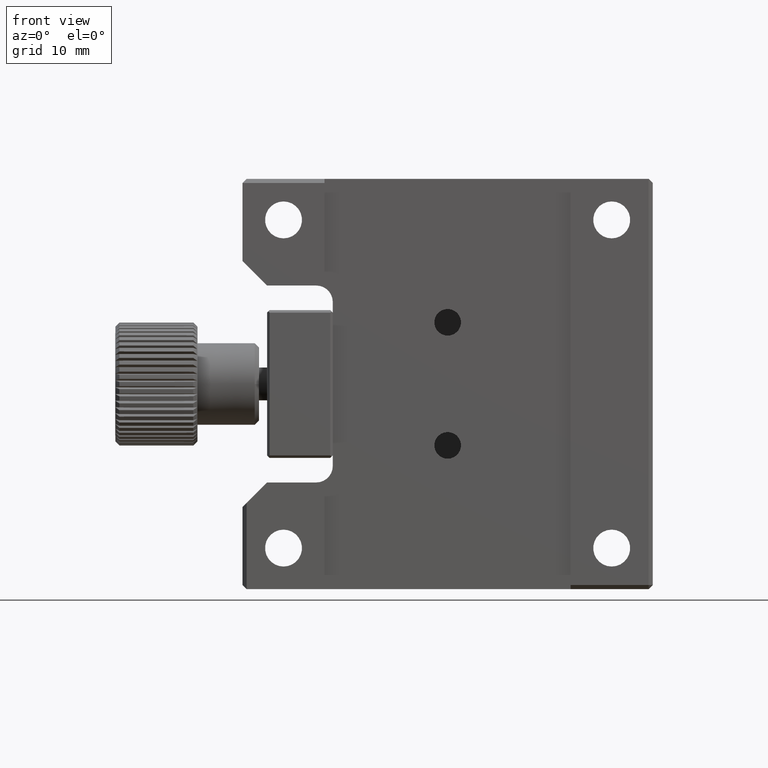
[diagram: clean part render]
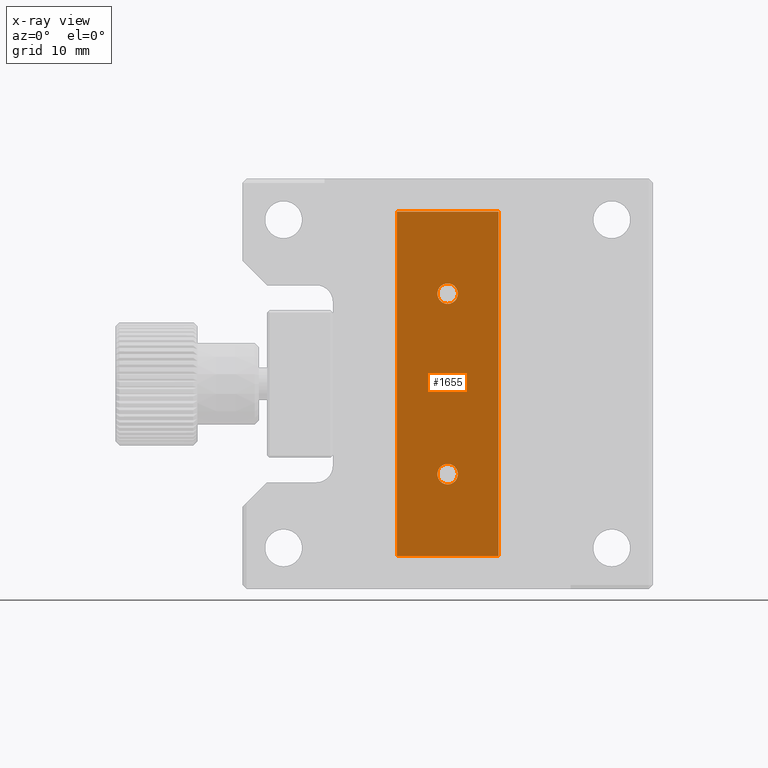
[diagram: x-ray — body ghosted, one internal face saturated and labeled with its STEP entity id]
A machine part, front view, then the same camera in x-ray: the body is ghosted and one INTERNAL B-rep face — a face not visible from any outside direction — is saturated and labeled: STEP entity #1655.
In plain terms, the highlighted planar face has unit normal (0, 1, 0).
Its self-contained STEP definition (entity closure, byte-faithful):
#153 = CARTESIAN_POINT ( 'NONE',  ( 6.199999999999990408, 18.99999999999999289, 21.00000000000000000 ) ) ;
#243 = AXIS2_PLACEMENT_3D ( 'NONE', #3459, #3710, #13551 ) ;
#318 = LINE ( 'NONE', #5308, #11089 ) ;
#435 = LINE ( 'NONE', #13077, #3577 ) ;
#485 = EDGE_CURVE ( 'NONE', #2507, #8879, #2434, .T. ) ;
#1209 = DIRECTION ( 'NONE',  ( 1.000000000000000000, 0.000000000000000000, -0.000000000000000000 ) ) ;
#1642 = VERTEX_POINT ( 'NONE', #11171 ) ;
#1655 = ADVANCED_FACE ( 'NONE', ( #3540, #14963, #8529 ), #4690, .F. ) ;
#1703 = CARTESIAN_POINT ( 'NONE',  ( 0.000000000000000000, 18.99999999993815791, -12.25000000005138645 ) ) ;
#1823 = ORIENTED_EDGE ( 'NONE', *, *, #7428, .F. ) ;
#2027 = DIRECTION ( 'NONE',  ( 0.000000000000000000, 0.000000000000000000, -1.000000000000000000 ) ) ;
#2434 = LINE ( 'NONE', #11381, #15657 ) ;
#2483 = EDGE_LOOP ( 'NONE', ( #3704, #13986, #7582, #12093 ) ) ;
#2507 = VERTEX_POINT ( 'NONE', #12923 ) ;
#2678 = DIRECTION ( 'NONE',  ( 0.000000000000000000, -1.000000000000000000, 0.000000000000000000 ) ) ;
#3264 = CARTESIAN_POINT ( 'NONE',  ( 0.000000000000000000, 18.99999999999500133, 11.00000000000000000 ) ) ;
#3459 = CARTESIAN_POINT ( 'NONE',  ( -6.199999999999990408, 19.00000000000001066, 21.00000000000000000 ) ) ;
#3540 = FACE_OUTER_BOUND ( 'NONE', #2483, .T. ) ;
#3577 = VECTOR ( 'NONE', #8041, 1000.000000000000000 ) ;
#3704 = ORIENTED_EDGE ( 'NONE', *, *, #485, .T. ) ;
#3710 = DIRECTION ( 'NONE',  ( 2.238352872228140044E-15, 1.000000000000000000, 0.000000000000000000 ) ) ;
#4183 = VECTOR ( 'NONE', #8608, 1000.000000000000000 ) ;
#4690 = PLANE ( 'NONE',  #243 ) ;
#5308 = CARTESIAN_POINT ( 'NONE',  ( 0.000000000000000000, 19.00000000000001066, -21.00000000000000000 ) ) ;
#6440 = DIRECTION ( 'NONE',  ( 0.000000000000000000, 0.000000000000000000, -1.000000000000000000 ) ) ;
#6482 = CARTESIAN_POINT ( 'NONE',  ( 0.000000000000000000, 18.99999999999500133, 9.749999999996816769 ) ) ;
#6567 = VERTEX_POINT ( 'NONE', #6482 ) ;
#7371 = LINE ( 'NONE', #7449, #4183 ) ;
#7417 = DIRECTION ( 'NONE',  ( -0.000000000000000000, -0.000000000000000000, 1.000000000000000000 ) ) ;
#7428 = EDGE_CURVE ( 'NONE', #6567, #6567, #13553, .T. ) ;
#7435 = AXIS2_PLACEMENT_3D ( 'NONE', #13928, #2678, #6440 ) ;
#7449 = CARTESIAN_POINT ( 'NONE',  ( -6.199999999999990408, 19.00000000000001066, 21.00000000000000000 ) ) ;
#7582 = ORIENTED_EDGE ( 'NONE', *, *, #12452, .F. ) ;
#8041 = DIRECTION ( 'NONE',  ( 1.000000000000000000, 0.000000000000000000, -0.000000000000000000 ) ) ;
#8247 = DIRECTION ( 'NONE',  ( 0.000000000000000000, -1.000000000000000000, 0.000000000000000000 ) ) ;
#8529 = FACE_BOUND ( 'NONE', #12934, .T. ) ;
#8608 = DIRECTION ( 'NONE',  ( 0.000000000000000000, -0.000000000000000000, 1.000000000000000000 ) ) ;
#8631 = CARTESIAN_POINT ( 'NONE',  ( -6.199999999999990408, 19.00000000000001066, 21.00000000000000000 ) ) ;
#8879 = VERTEX_POINT ( 'NONE', #153 ) ;
#9156 = EDGE_LOOP ( 'NONE', ( #1823 ) ) ;
#9980 = EDGE_CURVE ( 'NONE', #11966, #8879, #435, .T. ) ;
#10067 = VERTEX_POINT ( 'NONE', #1703 ) ;
#10119 = ORIENTED_EDGE ( 'NONE', *, *, #15632, .F. ) ;
#11089 = VECTOR ( 'NONE', #1209, 1000.000000000000000 ) ;
#11171 = CARTESIAN_POINT ( 'NONE',  ( -6.199999999999990408, 19.00000000000001066, -21.00000000000000000 ) ) ;
#11381 = CARTESIAN_POINT ( 'NONE',  ( 6.199999999999990408, 18.99999999999999289, 21.00000000000000000 ) ) ;
#11966 = VERTEX_POINT ( 'NONE', #8631 ) ;
#12093 = ORIENTED_EDGE ( 'NONE', *, *, #12997, .T. ) ;
#12452 = EDGE_CURVE ( 'NONE', #1642, #11966, #7371, .T. ) ;
#12780 = AXIS2_PLACEMENT_3D ( 'NONE', #3264, #8247, #2027 ) ;
#12923 = CARTESIAN_POINT ( 'NONE',  ( 6.199999999999990408, 18.99999999999999289, -21.00000000000000000 ) ) ;
#12934 = EDGE_LOOP ( 'NONE', ( #10119 ) ) ;
#12997 = EDGE_CURVE ( 'NONE', #1642, #2507, #318, .T. ) ;
#13077 = CARTESIAN_POINT ( 'NONE',  ( 0.000000000000000000, 19.00000000000001066, 21.00000000000000000 ) ) ;
#13551 = DIRECTION ( 'NONE',  ( -1.000000000000000000, 2.238352872228140044E-15, 0.000000000000000000 ) ) ;
#13553 = CIRCLE ( 'NONE', #12780, 1.250000000003182565 ) ;
#13928 = CARTESIAN_POINT ( 'NONE',  ( 0.000000000000000000, 18.99999999993815791, -11.00000000000000000 ) ) ;
#13986 = ORIENTED_EDGE ( 'NONE', *, *, #9980, .F. ) ;
#14528 = CIRCLE ( 'NONE', #7435, 1.250000000051387117 ) ;
#14963 = FACE_BOUND ( 'NONE', #9156, .T. ) ;
#15632 = EDGE_CURVE ( 'NONE', #10067, #10067, #14528, .T. ) ;
#15657 = VECTOR ( 'NONE', #7417, 1000.000000000000000 ) ;